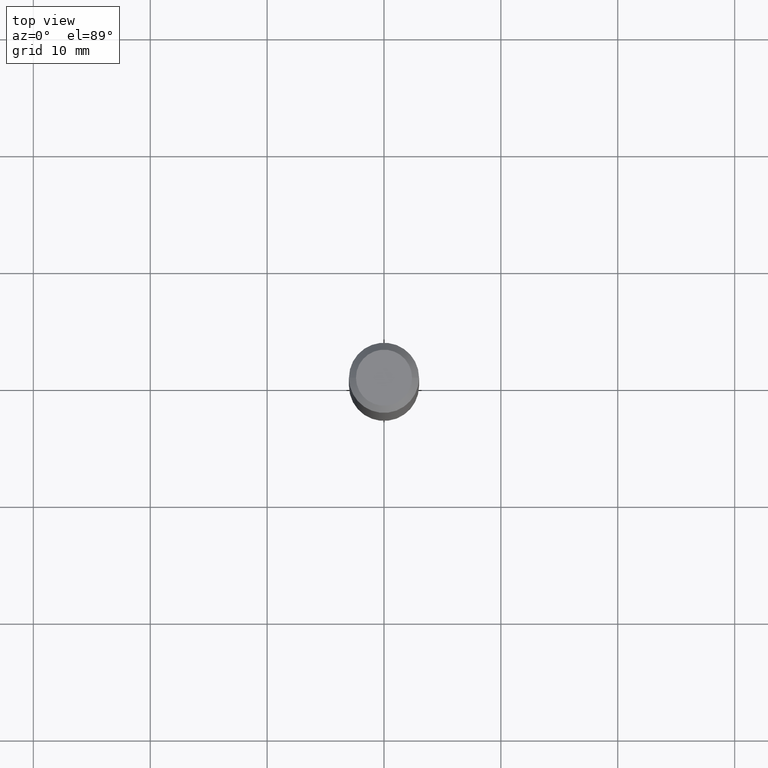
[diagram: clean part render]
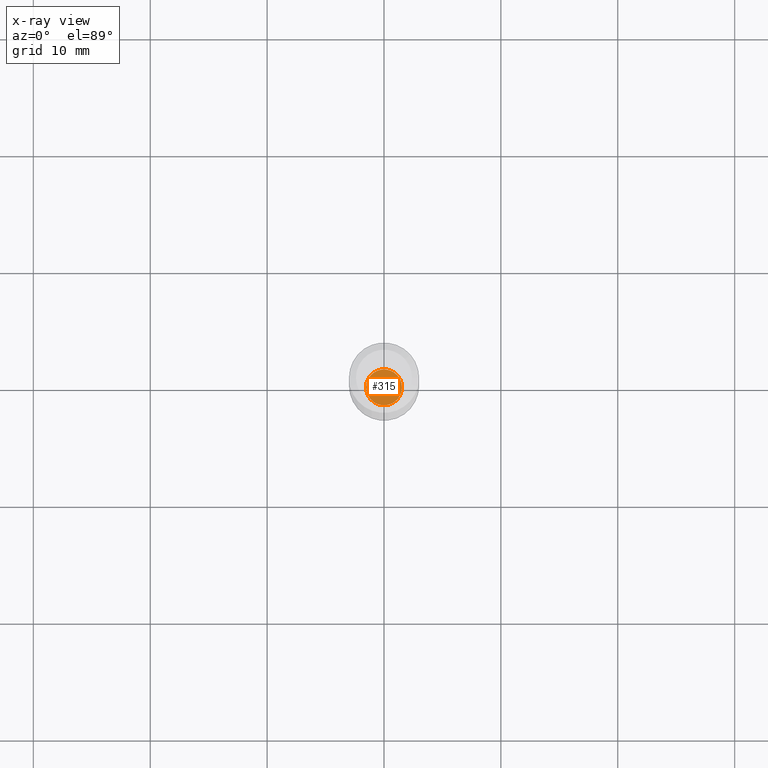
[diagram: x-ray — body ghosted, one internal face saturated and labeled with its STEP entity id]
A machine part, top view, then the same camera in x-ray: the body is ghosted and one INTERNAL B-rep face — a face not visible from any outside direction — is saturated and labeled: STEP entity #315.
In plain terms, the highlighted planar face has unit normal (-0, 0, 1).
Its self-contained STEP definition (entity closure, byte-faithful):
#9 = PLANE ( 'NONE',  #306 ) ;
#30 = CARTESIAN_POINT ( 'NONE',  ( 0.06049999999999999128, -7.020321528011911342E-15, -1.889700000000000157 ) ) ;
#37 = AXIS2_PLACEMENT_3D ( 'NONE', #234, #42, #308 ) ;
#42 = DIRECTION ( 'NONE',  ( -2.445468806185136597E-29, 3.491481338843145583E-15, 1.000000000000000000 ) ) ;
#46 = VERTEX_POINT ( 'NONE', #30 ) ;
#59 = VERTEX_POINT ( 'NONE', #484 ) ;
#60 = CIRCLE ( 'NONE', #166, 0.06049999999999999128 ) ;
#120 = DIRECTION ( 'NONE',  ( 1.000000000000000000, -6.982962677686261189E-15, 0.000000000000000000 ) ) ;
#135 = FACE_OUTER_BOUND ( 'NONE', #242, .T. ) ;
#136 = ORIENTED_EDGE ( 'NONE', *, *, #255, .F. ) ;
#166 = AXIS2_PLACEMENT_3D ( 'NONE', #207, #465, #120 ) ;
#169 = ORIENTED_EDGE ( 'NONE', *, *, #414, .F. ) ;
#207 = CARTESIAN_POINT ( 'NONE',  ( 4.621202403048053204E-29, -6.597852286011892490E-15, -1.889700000000000157 ) ) ;
#212 = CIRCLE ( 'NONE', #37, 0.06049999999999999128 ) ;
#234 = CARTESIAN_POINT ( 'NONE',  ( 4.621202403048053204E-29, -6.597852286011892490E-15, -1.889700000000000157 ) ) ;
#238 = DIRECTION ( 'NONE',  ( 1.000000000000000000, -6.982962677686265922E-15, 4.876176775795935793E-29 ) ) ;
#242 = EDGE_LOOP ( 'NONE', ( #136, #169 ) ) ;
#255 = EDGE_CURVE ( 'NONE', #46, #59, #212, .T. ) ;
#306 = AXIS2_PLACEMENT_3D ( 'NONE', #319, #421, #238 ) ;
#308 = DIRECTION ( 'NONE',  ( 1.000000000000000000, -6.982962677686261189E-15, 0.000000000000000000 ) ) ;
#315 = ADVANCED_FACE ( 'NONE', ( #135 ), #9, .F. ) ;
#319 = CARTESIAN_POINT ( 'NONE',  ( 4.621202403048053204E-29, -6.597852286011892490E-15, -1.889700000000000157 ) ) ;
#414 = EDGE_CURVE ( 'NONE', #59, #46, #60, .T. ) ;
#421 = DIRECTION ( 'NONE',  ( -2.438088387897960049E-29, 3.491481338843145188E-15, 1.000000000000000000 ) ) ;
#465 = DIRECTION ( 'NONE',  ( -2.445468806185136597E-29, 3.491481338843145583E-15, 1.000000000000000000 ) ) ;
#484 = CARTESIAN_POINT ( 'NONE',  ( -0.06049999999999999128, -6.165324703702921478E-15, -1.889700000000000157 ) ) ;